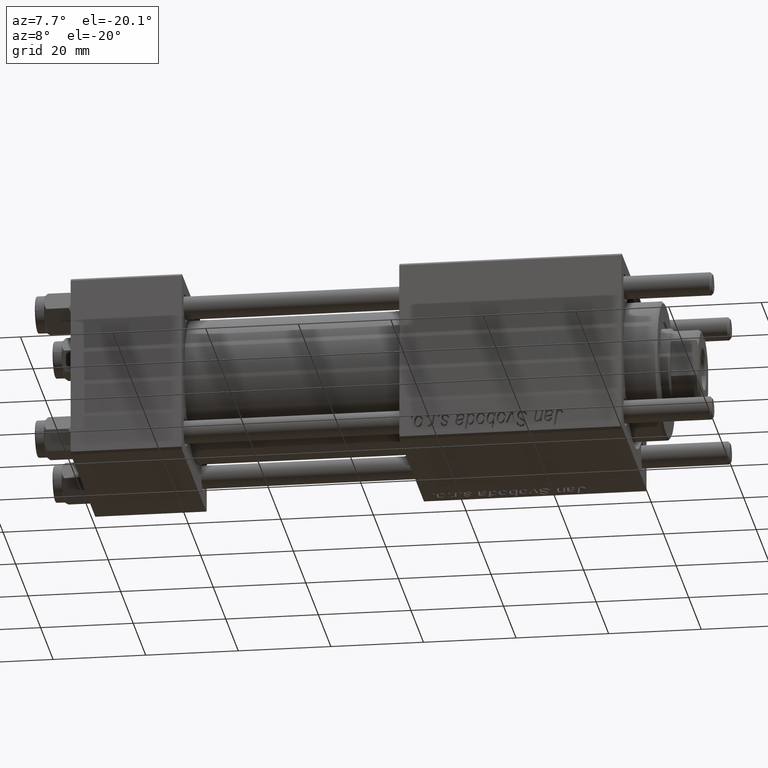
[diagram: clean part render]
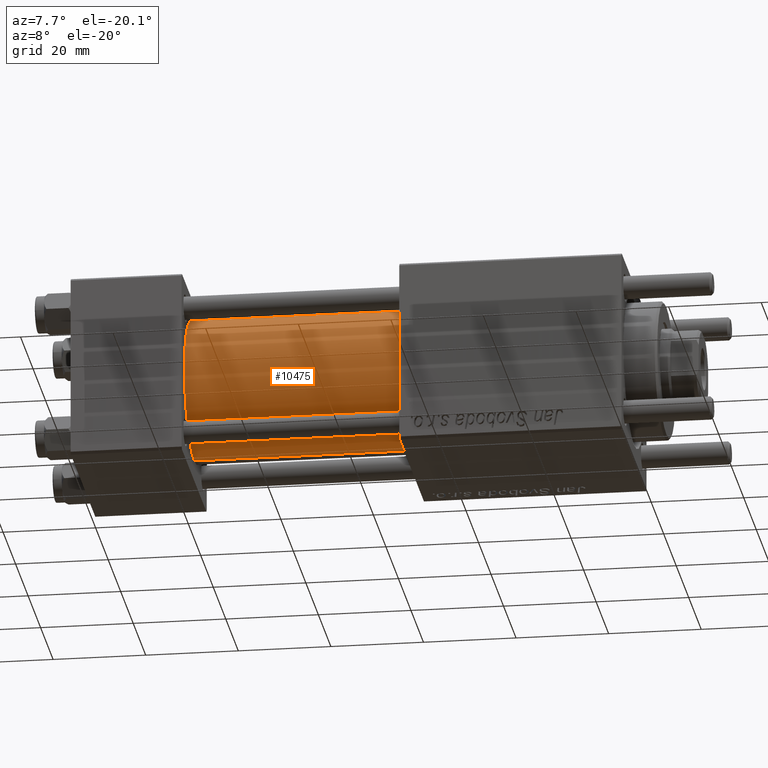
[diagram: same view with one face highlighted and labeled with its STEP entity id]
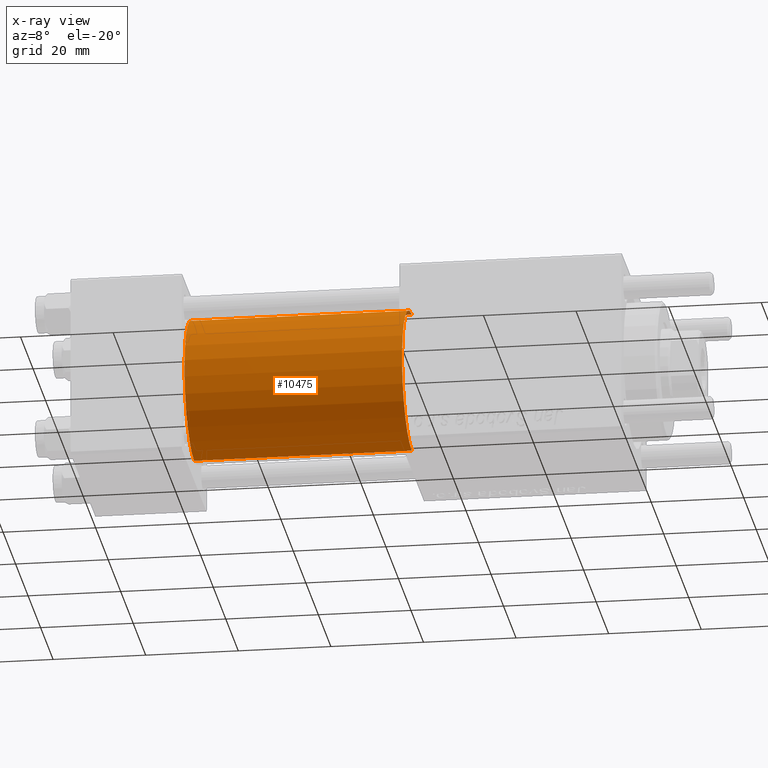
[diagram: x-ray of the same camera — body ghosted, the highlighted face saturated]
A machine part, auxiliary view. The second image highlights one B-rep face of the part: STEP entity #10475.
The next image is the same camera in x-ray: the body ghosted, the highlighted face saturated — about 0% of this face is hidden behind the body in this view.
In plain terms, the highlighted cylindrical surface (partial cylindrical patch) has radius 15.5 mm, axis along (-1, -0, -0).
Its self-contained STEP definition (entity closure, byte-faithful):
#1006 = CARTESIAN_POINT ( 'NONE',  ( 71.00000000000001421, -2.602085213965210642E-15, 15.50000000000000000 ) ) ;
#2359 = ORIENTED_EDGE ( 'NONE', *, *, #9907, .T. ) ;
#3167 = CARTESIAN_POINT ( 'NONE',  ( 24.00000000000000000, -2.602085213965210642E-15, 0.000000000000000000 ) ) ;
#3798 = EDGE_LOOP ( 'NONE', ( #9081, #29773, #47904, #2359 ) ) ;
#6111 = VERTEX_POINT ( 'NONE', #18933 ) ;
#7074 = CARTESIAN_POINT ( 'NONE',  ( 71.00000000000001421, -7.038826752868131828E-16, -15.50000000000000000 ) ) ;
#8287 = AXIS2_PLACEMENT_3D ( 'NONE', #31761, #44384, #32329 ) ;
#9081 = ORIENTED_EDGE ( 'NONE', *, *, #48856, .F. ) ;
#9907 = EDGE_CURVE ( 'NONE', #6111, #13439, #10902, .T. ) ;
#10475 = ADVANCED_FACE ( 'NONE', ( #32148 ), #18410, .T. ) ;
#10902 = CIRCLE ( 'NONE', #20056, 15.50000000000000000 ) ;
#11795 = DIRECTION ( 'NONE',  ( 0.000000000000000000, 0.000000000000000000, 1.000000000000000000 ) ) ;
#12828 = DIRECTION ( 'NONE',  ( -1.000000000000000000, -0.000000000000000000, -0.000000000000000000 ) ) ;
#13369 = VERTEX_POINT ( 'NONE', #31021 ) ;
#13439 = VERTEX_POINT ( 'NONE', #32426 ) ;
#18410 = CYLINDRICAL_SURFACE ( 'NONE', #39318, 15.50000000000000000 ) ;
#18773 = EDGE_CURVE ( 'NONE', #13369, #47963, #35762, .T. ) ;
#18933 = CARTESIAN_POINT ( 'NONE',  ( 24.00000000000000000, -2.602085213965210642E-15, 15.50000000000000000 ) ) ;
#20056 = AXIS2_PLACEMENT_3D ( 'NONE', #3167, #42452, #11795 ) ;
#27747 = CARTESIAN_POINT ( 'NONE',  ( 71.00000000000001421, -7.038826752868131828E-16, -15.50000000000000000 ) ) ;
#29773 = ORIENTED_EDGE ( 'NONE', *, *, #18773, .F. ) ;
#31021 = CARTESIAN_POINT ( 'NONE',  ( 71.00000000000001421, -2.602085213965210642E-15, 15.50000000000000000 ) ) ;
#31761 = CARTESIAN_POINT ( 'NONE',  ( 71.00000000000001421, -2.602085213965210642E-15, 0.000000000000000000 ) ) ;
#32148 = FACE_OUTER_BOUND ( 'NONE', #3798, .T. ) ;
#32329 = DIRECTION ( 'NONE',  ( 0.000000000000000000, 0.000000000000000000, -1.000000000000000000 ) ) ;
#32426 = CARTESIAN_POINT ( 'NONE',  ( 24.00000000000000000, -7.038826752868131828E-16, -15.50000000000000000 ) ) ;
#35762 = CIRCLE ( 'NONE', #8287, 15.50000000000000000 ) ;
#36009 = DIRECTION ( 'NONE',  ( -1.000000000000000000, -0.000000000000000000, -0.000000000000000000 ) ) ;
#37278 = EDGE_CURVE ( 'NONE', #13369, #6111, #40300, .T. ) ;
#39318 = AXIS2_PLACEMENT_3D ( 'NONE', #48780, #45050, #40182 ) ;
#40163 = VECTOR ( 'NONE', #36009, 1000.000000000000000 ) ;
#40182 = DIRECTION ( 'NONE',  ( 0.000000000000000000, 0.000000000000000000, 1.000000000000000000 ) ) ;
#40300 = LINE ( 'NONE', #1006, #40163 ) ;
#42452 = DIRECTION ( 'NONE',  ( 1.000000000000000000, 0.000000000000000000, 0.000000000000000000 ) ) ;
#44384 = DIRECTION ( 'NONE',  ( 1.000000000000000000, 0.000000000000000000, 0.000000000000000000 ) ) ;
#44991 = VECTOR ( 'NONE', #12828, 1000.000000000000000 ) ;
#45050 = DIRECTION ( 'NONE',  ( -1.000000000000000000, -0.000000000000000000, -0.000000000000000000 ) ) ;
#47904 = ORIENTED_EDGE ( 'NONE', *, *, #37278, .T. ) ;
#47963 = VERTEX_POINT ( 'NONE', #27747 ) ;
#48780 = CARTESIAN_POINT ( 'NONE',  ( 71.00000000000001421, -2.602085213965210642E-15, 0.000000000000000000 ) ) ;
#48856 = EDGE_CURVE ( 'NONE', #47963, #13439, #54937, .T. ) ;
#54937 = LINE ( 'NONE', #7074, #44991 ) ;